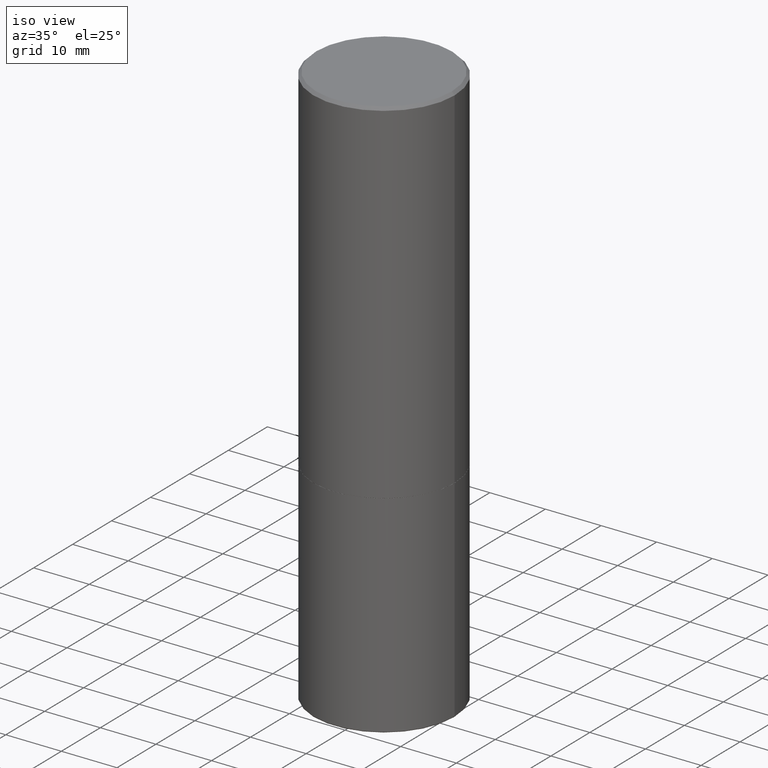
[diagram: clean part render]
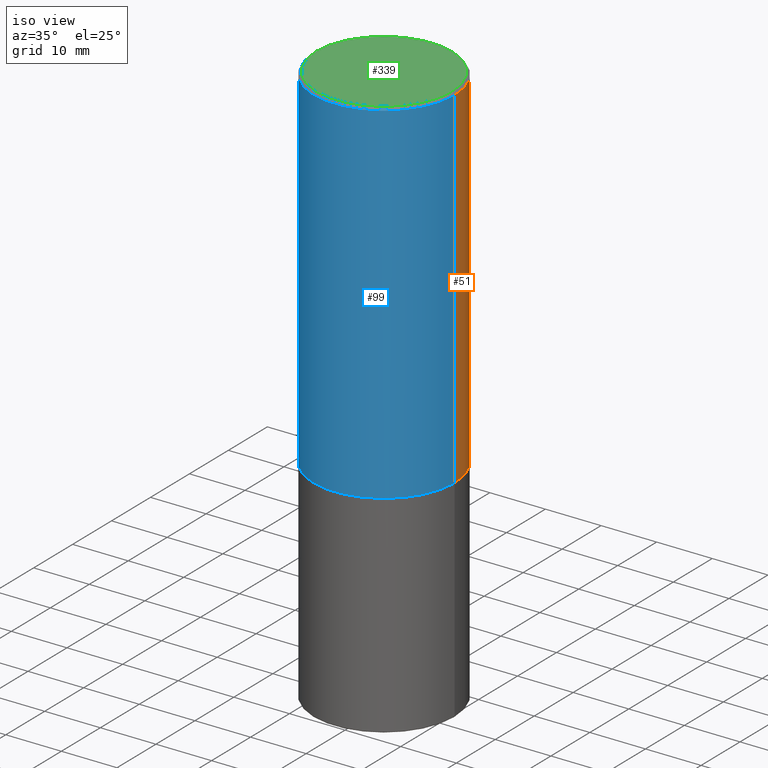
[diagram: same view with three faces highlighted in distinct colors, each labeled with its STEP entity id]
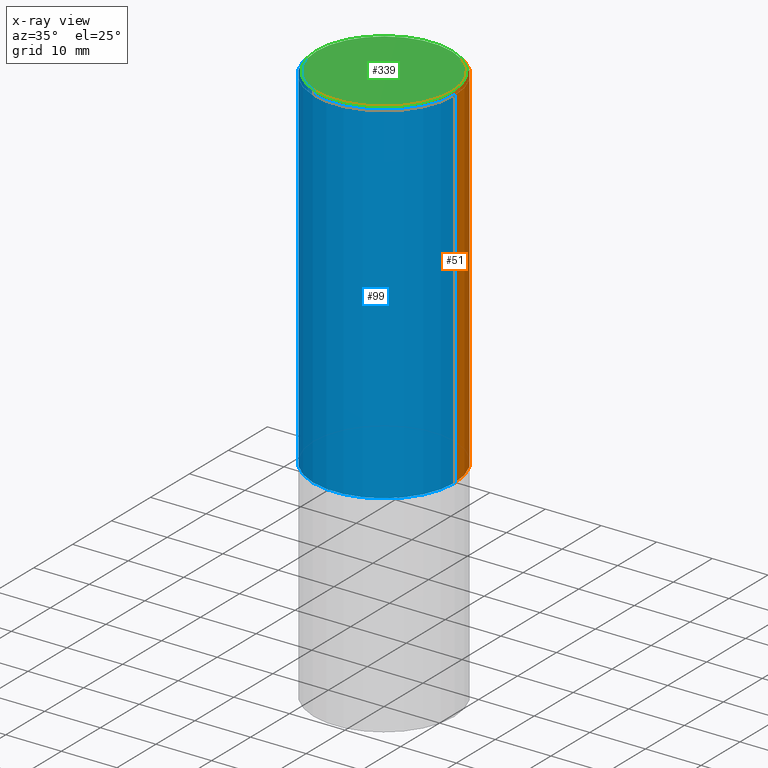
[diagram: x-ray of the same camera — body ghosted, the three highlighted faces saturated]
A machine part, iso view with three faces highlighted in distinct colors.
The next image is the same camera in x-ray (body ghosted, the three faces saturated) — at least one of them is partly hidden behind the body in this view.
Their STEP definitions:

[orange] entity #51 — the highlighted cylindrical surface (partial cylindrical patch) has radius 12.7 mm, axis along (-0, 0, 1).
#4 = AXIS2_PLACEMENT_3D ( 'NONE', #66, #32, #128 ) ;
#13 = ORIENTED_EDGE ( 'NONE', *, *, #211, .T. ) ;
#32 = DIRECTION ( 'NONE',  ( -2.445468806185136597E-29, 3.491481338843145583E-15, 1.000000000000000000 ) ) ;
#43 = DIRECTION ( 'NONE',  ( -2.445468806185136597E-29, 3.491481338843145583E-15, 1.000000000000000000 ) ) ;
#51 = ADVANCED_FACE ( 'NONE', ( #263 ), #265, .T. ) ;
#54 = CARTESIAN_POINT ( 'NONE',  ( 0.000000000000000000, 0.000000000000000000, 0.000000000000000000 ) ) ;
#63 = EDGE_CURVE ( 'NONE', #157, #104, #269, .T. ) ;
#66 = CARTESIAN_POINT ( 'NONE',  ( 6.111226546656657010E-29, -8.725211865769021935E-15, -2.499000000000000110 ) ) ;
#67 = ORIENTED_EDGE ( 'NONE', *, *, #399, .T. ) ;
#73 = DIRECTION ( 'NONE',  ( 1.000000000000000000, -6.982962677686265922E-15, 0.000000000000000000 ) ) ;
#75 = CARTESIAN_POINT ( 'NONE',  ( -0.5000000000000001110, 3.421651712066270452E-15, -0.02000000000000010797 ) ) ;
#76 = CIRCLE ( 'NONE', #158, 0.5000000000000001110 ) ;
#79 = DIRECTION ( 'NONE',  ( -2.445468806185136597E-29, 3.491481338843145583E-15, 1.000000000000000000 ) ) ;
#89 = DIRECTION ( 'NONE',  ( -2.445468806185136877E-29, 3.491481338843145188E-15, 1.000000000000000000 ) ) ;
#104 = VERTEX_POINT ( 'NONE', #353 ) ;
#118 = DIRECTION ( 'NONE',  ( 1.000000000000000000, -6.982962677686267499E-15, 4.876176775795935793E-29 ) ) ;
#128 = DIRECTION ( 'NONE',  ( 1.000000000000000000, -6.982962677686269866E-15, 0.000000000000000000 ) ) ;
#132 = ORIENTED_EDGE ( 'NONE', *, *, #63, .F. ) ;
#153 = CARTESIAN_POINT ( 'NONE',  ( -0.5000000000000001110, 3.552713678800501718E-15, -2.459467545127453732E-29 ) ) ;
#154 = CARTESIAN_POINT ( 'NONE',  ( 0.5000000000000001110, -3.491481338843134539E-15, 2.438088387897968457E-29 ) ) ;
#157 = VERTEX_POINT ( 'NONE', #329 ) ;
#158 = AXIS2_PLACEMENT_3D ( 'NONE', #370, #43, #73 ) ;
#211 = EDGE_CURVE ( 'NONE', #157, #342, #406, .T. ) ;
#230 = CARTESIAN_POINT ( 'NONE',  ( -0.5000000000000002220, -8.448070674724393209E-16, -2.499000000000000110 ) ) ;
#254 = VECTOR ( 'NONE', #89, 39.37007874015748143 ) ;
#255 = EDGE_LOOP ( 'NONE', ( #13, #67, #256, #132 ) ) ;
#256 = ORIENTED_EDGE ( 'NONE', *, *, #321, .F. ) ;
#263 = FACE_OUTER_BOUND ( 'NONE', #255, .T. ) ;
#265 = CYLINDRICAL_SURFACE ( 'NONE', #311, 0.5000000000000001110 ) ;
#269 = LINE ( 'NONE', #154, #254 ) ;
#288 = DIRECTION ( 'NONE',  ( -2.445468806185136877E-29, 3.491481338843145188E-15, 1.000000000000000000 ) ) ;
#311 = AXIS2_PLACEMENT_3D ( 'NONE', #54, #79, #118 ) ;
#321 = EDGE_CURVE ( 'NONE', #104, #325, #76, .T. ) ;
#325 = VERTEX_POINT ( 'NONE', #75 ) ;
#329 = CARTESIAN_POINT ( 'NONE',  ( 0.5000000000000002220, -1.221669320461215845E-14, -2.499000000000000110 ) ) ;
#342 = VERTEX_POINT ( 'NONE', #230 ) ;
#353 = CARTESIAN_POINT ( 'NONE',  ( 0.5000000000000001110, -3.500078625662629868E-15, -0.02000000000000010797 ) ) ;
#366 = VECTOR ( 'NONE', #288, 39.37007874015748143 ) ;
#370 = CARTESIAN_POINT ( 'NONE',  ( 4.890937612370299433E-31, -6.982962677686328587E-17, -0.02000000000000010797 ) ) ;
#384 = LINE ( 'NONE', #153, #366 ) ;
#399 = EDGE_CURVE ( 'NONE', #342, #325, #384, .T. ) ;
#406 = CIRCLE ( 'NONE', #4, 0.5000000000000002220 ) ;

[blue] entity #99 — the highlighted cylindrical surface (partial cylindrical patch) has radius 12.7 mm, axis along (-0, 0, 1).
#2 = DIRECTION ( 'NONE',  ( -2.445468806185136597E-29, 3.491481338843145583E-15, 1.000000000000000000 ) ) ;
#14 = EDGE_CURVE ( 'NONE', #342, #157, #262, .T. ) ;
#63 = EDGE_CURVE ( 'NONE', #157, #104, #269, .T. ) ;
#75 = CARTESIAN_POINT ( 'NONE',  ( -0.5000000000000001110, 3.421651712066270452E-15, -0.02000000000000010797 ) ) ;
#89 = DIRECTION ( 'NONE',  ( -2.445468806185136877E-29, 3.491481338843145188E-15, 1.000000000000000000 ) ) ;
#99 = ADVANCED_FACE ( 'NONE', ( #290 ), #411, .T. ) ;
#104 = VERTEX_POINT ( 'NONE', #353 ) ;
#113 = CARTESIAN_POINT ( 'NONE',  ( 0.000000000000000000, 0.000000000000000000, 0.000000000000000000 ) ) ;
#130 = ORIENTED_EDGE ( 'NONE', *, *, #166, .F. ) ;
#153 = CARTESIAN_POINT ( 'NONE',  ( -0.5000000000000001110, 3.552713678800501718E-15, -2.459467545127453732E-29 ) ) ;
#154 = CARTESIAN_POINT ( 'NONE',  ( 0.5000000000000001110, -3.491481338843134539E-15, 2.438088387897968457E-29 ) ) ;
#157 = VERTEX_POINT ( 'NONE', #329 ) ;
#164 = CARTESIAN_POINT ( 'NONE',  ( 6.111226546656657010E-29, -8.725211865769021935E-15, -2.499000000000000110 ) ) ;
#166 = EDGE_CURVE ( 'NONE', #325, #104, #270, .T. ) ;
#170 = AXIS2_PLACEMENT_3D ( 'NONE', #301, #279, #364 ) ;
#185 = AXIS2_PLACEMENT_3D ( 'NONE', #113, #234, #200 ) ;
#200 = DIRECTION ( 'NONE',  ( 1.000000000000000000, -6.982962677686267499E-15, 4.876176775795935793E-29 ) ) ;
#217 = EDGE_LOOP ( 'NONE', ( #244, #331, #374, #130 ) ) ;
#230 = CARTESIAN_POINT ( 'NONE',  ( -0.5000000000000002220, -8.448070674724393209E-16, -2.499000000000000110 ) ) ;
#234 = DIRECTION ( 'NONE',  ( -2.445468806185136597E-29, 3.491481338843145583E-15, 1.000000000000000000 ) ) ;
#244 = ORIENTED_EDGE ( 'NONE', *, *, #399, .F. ) ;
#254 = VECTOR ( 'NONE', #89, 39.37007874015748143 ) ;
#260 = DIRECTION ( 'NONE',  ( 1.000000000000000000, -6.982962677686269866E-15, 0.000000000000000000 ) ) ;
#262 = CIRCLE ( 'NONE', #313, 0.5000000000000002220 ) ;
#269 = LINE ( 'NONE', #154, #254 ) ;
#270 = CIRCLE ( 'NONE', #170, 0.5000000000000001110 ) ;
#279 = DIRECTION ( 'NONE',  ( -2.445468806185136597E-29, 3.491481338843145583E-15, 1.000000000000000000 ) ) ;
#288 = DIRECTION ( 'NONE',  ( -2.445468806185136877E-29, 3.491481338843145188E-15, 1.000000000000000000 ) ) ;
#290 = FACE_OUTER_BOUND ( 'NONE', #217, .T. ) ;
#301 = CARTESIAN_POINT ( 'NONE',  ( 4.890937612370299433E-31, -6.982962677686328587E-17, -0.02000000000000010797 ) ) ;
#313 = AXIS2_PLACEMENT_3D ( 'NONE', #164, #2, #260 ) ;
#325 = VERTEX_POINT ( 'NONE', #75 ) ;
#329 = CARTESIAN_POINT ( 'NONE',  ( 0.5000000000000002220, -1.221669320461215845E-14, -2.499000000000000110 ) ) ;
#331 = ORIENTED_EDGE ( 'NONE', *, *, #14, .T. ) ;
#342 = VERTEX_POINT ( 'NONE', #230 ) ;
#353 = CARTESIAN_POINT ( 'NONE',  ( 0.5000000000000001110, -3.500078625662629868E-15, -0.02000000000000010797 ) ) ;
#364 = DIRECTION ( 'NONE',  ( 1.000000000000000000, -6.982962677686265922E-15, 0.000000000000000000 ) ) ;
#366 = VECTOR ( 'NONE', #288, 39.37007874015748143 ) ;
#374 = ORIENTED_EDGE ( 'NONE', *, *, #63, .T. ) ;
#384 = LINE ( 'NONE', #153, #366 ) ;
#399 = EDGE_CURVE ( 'NONE', #342, #325, #384, .T. ) ;
#411 = CYLINDRICAL_SURFACE ( 'NONE', #185, 0.5000000000000001110 ) ;

[green] entity #339 — the highlighted planar face has unit normal (0, -0, -1).
#9 = DIRECTION ( 'NONE',  ( 1.000000000000000000, -6.982962677686266711E-15, 4.878011538933550964E-29 ) ) ;
#49 = CARTESIAN_POINT ( 'NONE',  ( 0.4799999999999999267, -3.396558832296482099E-15, 1.750090120941404697E-16 ) ) ;
#106 = EDGE_CURVE ( 'NONE', #386, #246, #116, .T. ) ;
#116 = CIRCLE ( 'NONE', #354, 0.4799999999999999267 ) ;
#124 = ORIENTED_EDGE ( 'NONE', *, *, #106, .T. ) ;
#136 = EDGE_CURVE ( 'NONE', #246, #386, #360, .T. ) ;
#173 = CARTESIAN_POINT ( 'NONE',  ( -4.279790798774401163E-45, 6.110406998559833931E-31, 1.750090120941168532E-16 ) ) ;
#178 = EDGE_LOOP ( 'NONE', ( #124, #212 ) ) ;
#180 = CARTESIAN_POINT ( 'NONE',  ( 3.351822085289407153E-15, 0.4799999999999999267, -1.588406536597651338E-15 ) ) ;
#212 = ORIENTED_EDGE ( 'NONE', *, *, #136, .T. ) ;
#215 = FACE_OUTER_BOUND ( 'NONE', #178, .T. ) ;
#231 = DIRECTION ( 'NONE',  ( -2.445468806185136597E-29, 3.491481338843145583E-15, 1.000000000000000000 ) ) ;
#240 = AXIS2_PLACEMENT_3D ( 'NONE', #173, #303, #9 ) ;
#246 = VERTEX_POINT ( 'NONE', #49 ) ;
#257 = DIRECTION ( 'NONE',  ( -1.000000000000000000, 6.982962677686265922E-15, -4.876176775795935793E-29 ) ) ;
#303 = DIRECTION ( 'NONE',  ( -2.445468806185136597E-29, 3.491481338843145583E-15, 1.000000000000000000 ) ) ;
#322 = DIRECTION ( 'NONE',  ( 1.000000000000000000, -6.982962677686266711E-15, 4.878011538933550964E-29 ) ) ;
#335 = PLANE ( 'NONE',  #379 ) ;
#339 = ADVANCED_FACE ( 'NONE', ( #215 ), #335, .F. ) ;
#346 = CARTESIAN_POINT ( 'NONE',  ( -4.279790798774401163E-45, 6.110406998559833931E-31, 1.750090120941168532E-16 ) ) ;
#352 = CARTESIAN_POINT ( 'NONE',  ( -0.4799999999999999267, 3.386736898677839197E-15, 1.750090120940932860E-16 ) ) ;
#354 = AXIS2_PLACEMENT_3D ( 'NONE', #346, #231, #322 ) ;
#360 = CIRCLE ( 'NONE', #240, 0.4799999999999999267 ) ;
#378 = DIRECTION ( 'NONE',  ( 2.438088387897960049E-29, -3.491481338843145188E-15, -1.000000000000000000 ) ) ;
#379 = AXIS2_PLACEMENT_3D ( 'NONE', #180, #378, #257 ) ;
#386 = VERTEX_POINT ( 'NONE', #352 ) ;